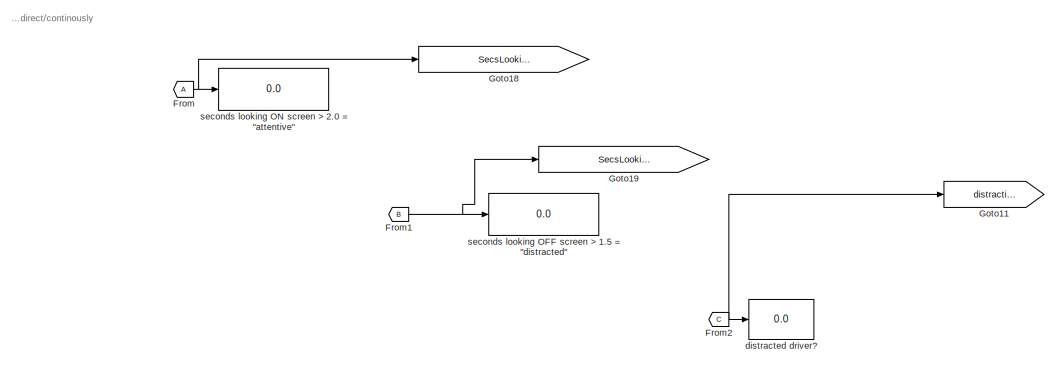
[diagram: root canvas - part 1/3, top right region]
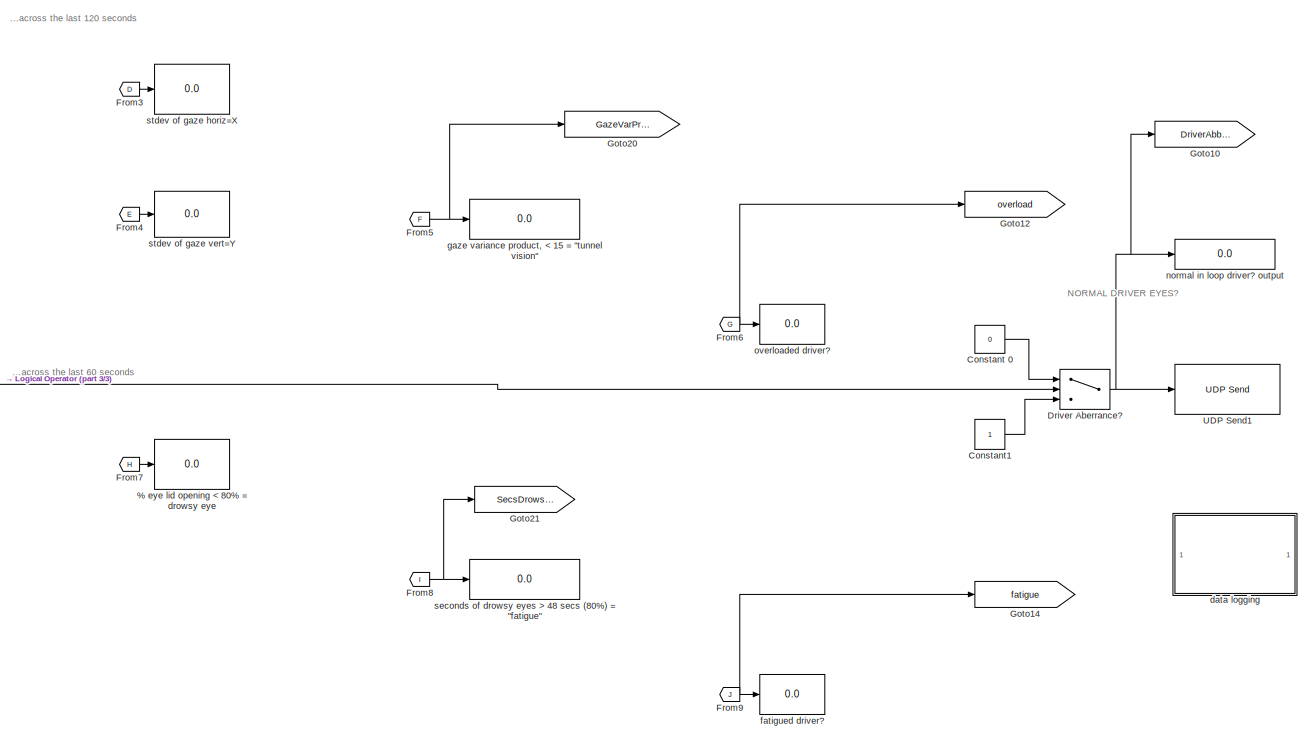
[diagram: root canvas - part 2/3, middle right region]
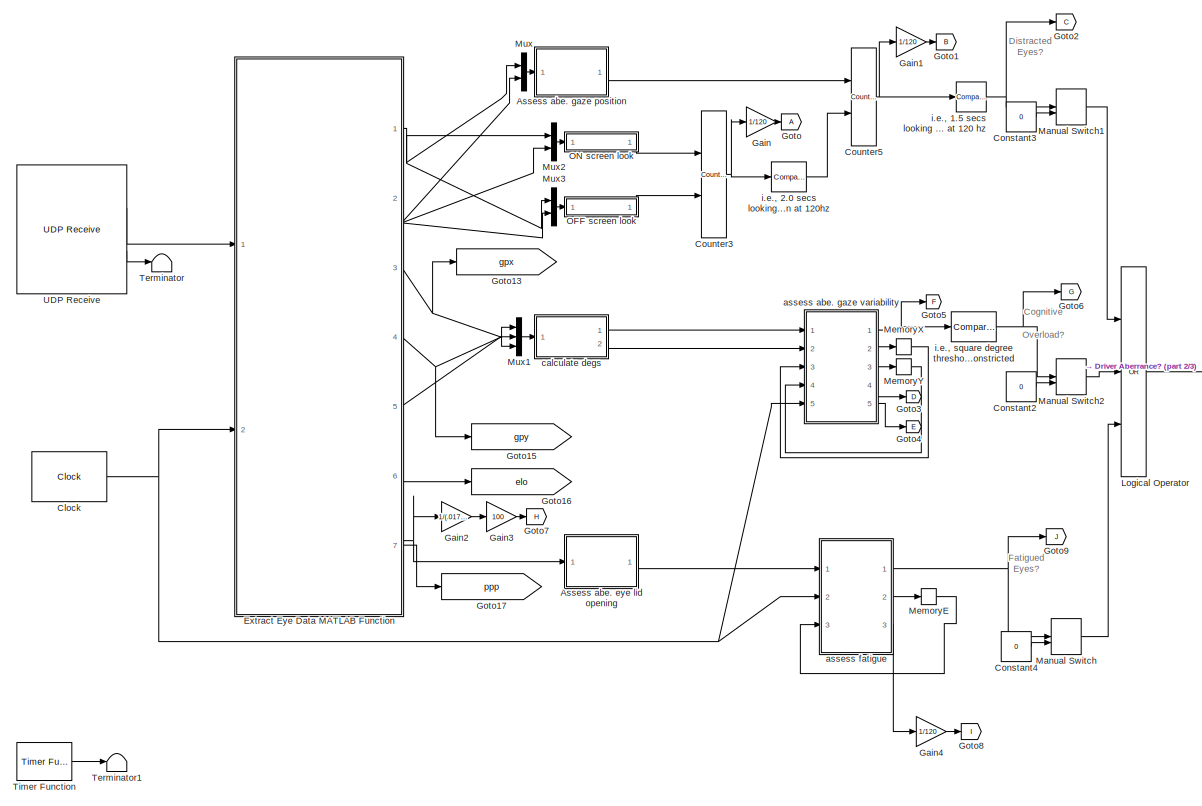
[diagram: root canvas - part 3/3, middle left region]
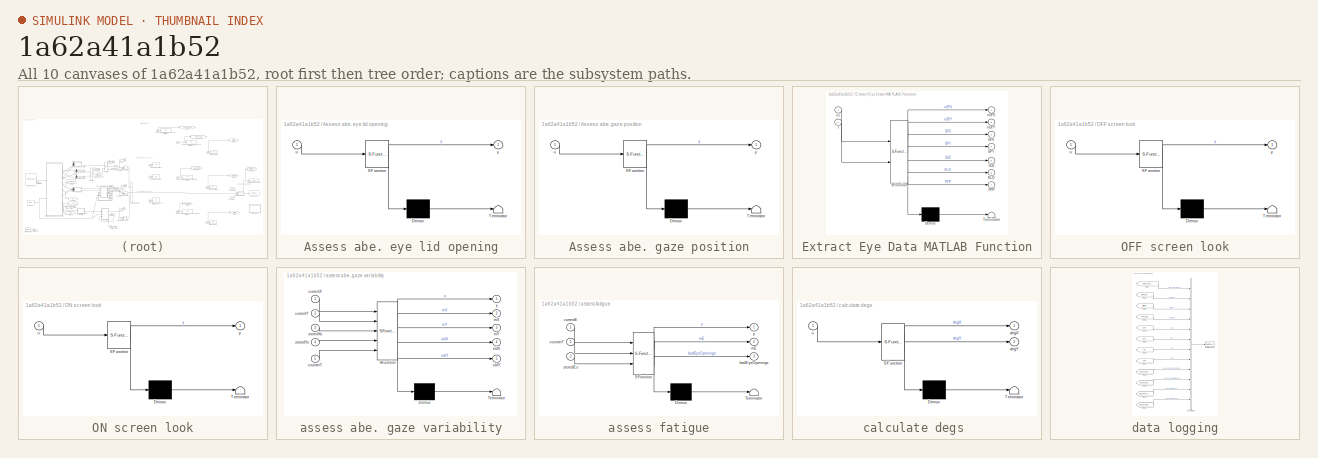
[diagram: thumbnail index - all 10 canvases of the model, root first then tree order]
MODEL slx_1a62a41a1b52
KIND model
CONFIG StopFcn = format shortg\nc = clock;\nlog_filename = ['log_ETT_',num2str(c(1)),'_',num2str(c(2)),'_',num2str(c(3)),'_',num2str(c(4)),'_',num2str(c(5)),'_',num2str(round(c(6)))];\nsave(log_filename,'eyeres')
BLOCK [Display]  gaze variance product, < 15 = "tunnel vision"
  Decimation = 1
  Ports = [1]
BLOCK [Display]  seconds of drowsy eyes > 48 secs (80%) = "fatigue"
  Decimation = 1
  Ports = [1]
BLOCK [Display] % eye lid opening < 80% = drowsy eye 
  Decimation = 1
  Ports = [1]
BLOCK [SubSystem] Assess abe. eye lid opening
  ErrorFcn = Stateflow.Translate.translate
  PermitHierarchicalResolution = ExplicitOnly
  Ports = [1, 1]
  RequestExecContextInheritance = off
  SFBlockType = MATLAB Function
  TreatAsAtomicUnit = on
BLOCK [Demux] Assess abe. eye lid opening/ Demux 
  Outputs = 1
  Ports = [1, 1]
BLOCK [S-Function] Assess abe. eye lid opening/ SFunction 
  EnableBusSupport = on
  FunctionName = sf_sfun
  PortCounts = [1 2]
  Ports = [1, 2]
  Tag = Stateflow S-Function AberrantEyes6 3
BLOCK [Terminator] Assess abe. eye lid opening/ Terminator 
BLOCK [Inport] Assess abe. eye lid opening/u
  IconDisplay = Port number
BLOCK [Outport] Assess abe. eye lid opening/y
  IconDisplay = Port number
BLOCK [SubSystem] Assess abe. gaze position
  ErrorFcn = Stateflow.Translate.translate
  PermitHierarchicalResolution = ExplicitOnly
  Ports = [1, 1]
  RequestExecContextInheritance = off
  SFBlockType = MATLAB Function
  TreatAsAtomicUnit = on
BLOCK [Demux] Assess abe. gaze position/ Demux 
  Outputs = 1
  Ports = [1, 1]
BLOCK [S-Function] Assess abe. gaze position/ SFunction 
  EnableBusSupport = on
  FunctionName = sf_sfun
  PortCounts = [1 2]
  Ports = [1, 2]
  Tag = Stateflow S-Function AberrantEyes6 2
BLOCK [Terminator] Assess abe. gaze position/ Terminator 
BLOCK [Inport] Assess abe. gaze position/u
  IconDisplay = Port number
BLOCK [Outport] Assess abe. gaze position/y
  IconDisplay = Port number
BLOCK [Clock] Clock
  DisplayTime = on
BLOCK [Constant] Constant 0
  Value = 0
BLOCK [Constant] Constant1
BLOCK [Constant] Constant2
  Value = 0
BLOCK [Constant] Constant3
  Value = 0
BLOCK [Constant] Constant4
  Value = 0
BLOCK [Reference] Counter3  REF=dspswit3/Counter
  CntDtype = uint16
  CountEvent = Non-zero sample
  CounterSize = 16 bits
  Direction = Up
  HitDtype = Logical
  HitValue = 32
  InitialCount = 0
  MaxCount = 3600
  Output = Count
  Ports = [2, 1]
  ResetInput = on
  SamplesPerFrame = 1
  SourceBlock = dspswit3/Counter
  SourceType = Counter
  Ts = 1
BLOCK [Reference] Counter5  REF=dspswit3/Counter
  CntDtype = uint16
  CountEvent = Non-zero sample
  CounterSize = 16 bits
  Direction = Up
  HitDtype = Logical
  HitValue = 32
  InitialCount = 0
  MaxCount = 3600
  Output = Count
  Ports = [2, 1]
  ResetInput = on
  SamplesPerFrame = 1
  SourceBlock = dspswit3/Counter
  SourceType = Counter
  Ts = 1
BLOCK [Switch] Driver Aberrance? 
  Criteria = u2 > Threshold
  InputSameDT = off
  SaturateOnIntegerOverflow = off
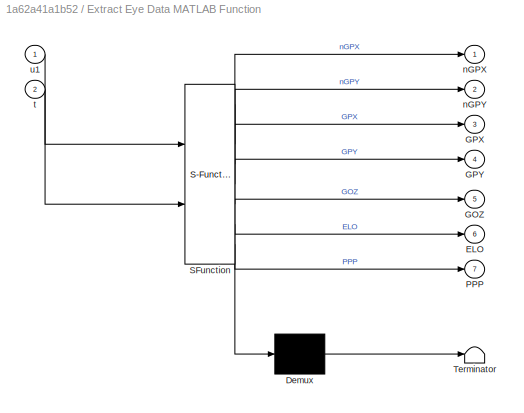
BLOCK [SubSystem] Extract Eye Data MATLAB Function
  ErrorFcn = Stateflow.Translate.translate
  PermitHierarchicalResolution = ExplicitOnly
  Ports = [2, 7]
  RequestExecContextInheritance = off
  SFBlockType = MATLAB Function
  TreatAsAtomicUnit = on
BLOCK [Demux] Extract Eye Data MATLAB Function/ Demux 
  Outputs = 1
  Ports = [1, 1]
BLOCK [S-Function] Extract Eye Data MATLAB Function/ SFunction 
  EnableBusSupport = on
  FunctionName = sf_sfun
  PortCounts = [2 8]
  Ports = [2, 8]
  Tag = Stateflow S-Function AberrantEyes6 1
BLOCK [Terminator] Extract Eye Data MATLAB Function/ Terminator 
BLOCK [Outport] Extract Eye Data MATLAB Function/ELO
  IconDisplay = Port number
  Port = 6
BLOCK [Outport] Extract Eye Data MATLAB Function/GOZ
  IconDisplay = Port number
  Port = 5
BLOCK [Outport] Extract Eye Data MATLAB Function/GPX
  IconDisplay = Port number
  Port = 3
BLOCK [Outport] Extract Eye Data MATLAB Function/GPY
  IconDisplay = Port number
  Port = 4
BLOCK [Outport] Extract Eye Data MATLAB Function/PPP
  IconDisplay = Port number
  Port = 7
BLOCK [Outport] Extract Eye Data MATLAB Function/nGPX
  IconDisplay = Port number
BLOCK [Outport] Extract Eye Data MATLAB Function/nGPY
  IconDisplay = Port number
  Port = 2
BLOCK [Inport] Extract Eye Data MATLAB Function/t
  IconDisplay = Port number
  Port = 2
BLOCK [Inport] Extract Eye Data MATLAB Function/u1
  IconDisplay = Port number
BLOCK [From] From
BLOCK [From] From1
  GotoTag = B
BLOCK [From] From2
  GotoTag = C
BLOCK [From] From3
  GotoTag = D
BLOCK [From] From4
  GotoTag = E
BLOCK [From] From5
  GotoTag = F
BLOCK [From] From6
  GotoTag = G
BLOCK [From] From7
  GotoTag = H
BLOCK [From] From8
  GotoTag = I
BLOCK [From] From9
  GotoTag = J
BLOCK [Gain] Gain
  Gain = 1/120
  OutDataTypeStr = Inherit: Inherit via internal rule
  ParamDataTypeStr = Inherit: Inherit via internal rule
  SaturateOnIntegerOverflow = off
BLOCK [Gain] Gain1
  Gain = 1/120
  OutDataTypeStr = Inherit: Inherit via internal rule
  ParamDataTypeStr = Inherit: Inherit via internal rule
  SaturateOnIntegerOverflow = off
BLOCK [Gain] Gain2
  Gain = 1/(.017-.004)
  OutDataTypeStr = Inherit: Inherit via internal rule
  ParamDataTypeStr = Inherit: Inherit via internal rule
  SaturateOnIntegerOverflow = off
BLOCK [Gain] Gain3
  Gain = 100
  OutDataTypeStr = Inherit: Inherit via internal rule
  ParamDataTypeStr = Inherit: Inherit via internal rule
  SaturateOnIntegerOverflow = off
BLOCK [Gain] Gain4
  Gain = 1/120
  OutDataTypeStr = Inherit: Inherit via internal rule
  ParamDataTypeStr = Inherit: Inherit via internal rule
  SaturateOnIntegerOverflow = off
BLOCK [Goto] Goto
BLOCK [Goto] Goto1
  GotoTag = B
BLOCK [Goto] Goto10
  GotoTag = DriverAbberance
  TagVisibility = global
BLOCK [Goto] Goto11
  GotoTag = distraction
  TagVisibility = global
BLOCK [Goto] Goto12
  GotoTag = overload
  TagVisibility = global
BLOCK [Goto] Goto13
  GotoTag = gpx
  TagVisibility = global
BLOCK [Goto] Goto14
  GotoTag = fatigue
  TagVisibility = global
BLOCK [Goto] Goto15
  GotoTag = gpy
  TagVisibility = global
BLOCK [Goto] Goto16
  GotoTag = elo
  TagVisibility = global
BLOCK [Goto] Goto17
  GotoTag = ppp
  TagVisibility = global
BLOCK [Goto] Goto18
  GotoTag = SecsLookingOnScreen
  TagVisibility = global
BLOCK [Goto] Goto19
  GotoTag = SecsLookingOffScreen
  TagVisibility = global
BLOCK [Goto] Goto2
  GotoTag = C
BLOCK [Goto] Goto20
  GotoTag = GazeVarProduct
  TagVisibility = global
BLOCK [Goto] Goto21
  GotoTag = SecsDrowsyEyes
  TagVisibility = global
BLOCK [Goto] Goto3
  GotoTag = D
BLOCK [Goto] Goto4
  GotoTag = E
BLOCK [Goto] Goto5
  GotoTag = F
BLOCK [Goto] Goto6
  GotoTag = G
BLOCK [Goto] Goto7
  GotoTag = H
BLOCK [Goto] Goto8
  GotoTag = I
BLOCK [Goto] Goto9
  GotoTag = J
BLOCK [Logic] Logical Operator
  AllPortsSameDT = off
  Inputs = 3
  Operator = OR
  OutDataTypeStr = boolean
  Ports = [3, 1]
BLOCK [ManualSwitch] Manual Switch
BLOCK [ManualSwitch] Manual Switch1
BLOCK [ManualSwitch] Manual Switch2
BLOCK [Memory] MemoryE
  X0 = zeros(1,7200)
BLOCK [Memory] MemoryX
  X0 = zeros(1,14400)
BLOCK [Memory] MemoryY
  X0 = zeros(1,14400)
BLOCK [Mux] Mux
  DisplayOption = bar
  Inputs = 2
  Ports = [2, 1]
BLOCK [Mux] Mux1
  DisplayOption = bar
  Inputs = 3
  Ports = [3, 1]
BLOCK [Mux] Mux2
  DisplayOption = bar
  Inputs = 2
  Ports = [2, 1]
BLOCK [Mux] Mux3
  DisplayOption = bar
  Inputs = 2
  Ports = [2, 1]
BLOCK [SubSystem] OFF screen look
  ErrorFcn = Stateflow.Translate.translate
  PermitHierarchicalResolution = ExplicitOnly
  Ports = [1, 1]
  RequestExecContextInheritance = off
  SFBlockType = MATLAB Function
  TreatAsAtomicUnit = on
BLOCK [Demux] OFF screen look/ Demux 
  Outputs = 1
  Ports = [1, 1]
BLOCK [S-Function] OFF screen look/ SFunction 
  EnableBusSupport = on
  FunctionName = sf_sfun
  PortCounts = [1 2]
  Ports = [1, 2]
  Tag = Stateflow S-Function AberrantEyes6 6
BLOCK [Terminator] OFF screen look/ Terminator 
BLOCK [Inport] OFF screen look/u
  IconDisplay = Port number
BLOCK [Outport] OFF screen look/y
  IconDisplay = Port number
BLOCK [SubSystem] ON screen look
  ErrorFcn = Stateflow.Translate.translate
  PermitHierarchicalResolution = ExplicitOnly
  Ports = [1, 1]
  RequestExecContextInheritance = off
  SFBlockType = MATLAB Function
  TreatAsAtomicUnit = on
BLOCK [Demux] ON screen look/ Demux 
  Outputs = 1
  Ports = [1, 1]
BLOCK [S-Function] ON screen look/ SFunction 
  EnableBusSupport = on
  FunctionName = sf_sfun
  PortCounts = [1 2]
  Ports = [1, 2]
  Tag = Stateflow S-Function AberrantEyes6 7
BLOCK [Terminator] ON screen look/ Terminator 
BLOCK [Inport] ON screen look/u
  IconDisplay = Port number
BLOCK [Outport] ON screen look/y
  IconDisplay = Port number
BLOCK [Terminator] Terminator
  Commented = on
BLOCK [Terminator] Terminator1
BLOCK [Reference] Timer Function  REF=RT/Timer Function
  Ports = [0, 1]
  SourceBlock = RT/Timer Function
  SourceType = RTBlock
  ThPriority = TIME CRITICAL
  priority = HIGH
  step = 16.666666
BLOCK [Reference] UDP Receive  REF=dspnetwork/UDP Receive
  Ports = [0, 2]
  SourceBlock = dspnetwork/UDP Receive
  SourceType = UDP Receive
  blockingTime = 0
  dims = 100
  isVarSize = off
  localPort = 139
  localURL = '0.0.0.0'
  recvBufferSize = 100
  remotePort = -1
  remoteURL = '192.168.101.1'
  sampletime = 1/60
  showBlockingTime = off
  signalDatatype = uint8
BLOCK [Reference] UDP Send1  REF=dspnetwork/UDP Send
  Ports = [1]
  SourceBlock = dspnetwork/UDP Send
  SourceType = UDP Send
  localPort = -1
  localPortSource = Automatically determine
  localURL = '0.0.0.0'
  remotePort = 25000
  remoteURL = '169.254.71.50'
  sampletime = -1
  separateLengthPort = 0
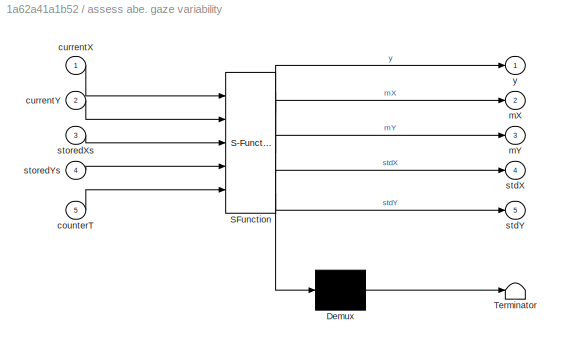
BLOCK [SubSystem] assess abe. gaze variability
  ErrorFcn = Stateflow.Translate.translate
  PermitHierarchicalResolution = ExplicitOnly
  Ports = [5, 5]
  RequestExecContextInheritance = off
  SFBlockType = MATLAB Function
  TreatAsAtomicUnit = on
BLOCK [Demux] assess abe. gaze variability/ Demux 
  Outputs = 1
  Ports = [1, 1]
BLOCK [S-Function] assess abe. gaze variability/ SFunction 
  EnableBusSupport = on
  FunctionName = sf_sfun
  PortCounts = [5 6]
  Ports = [5, 6]
  Tag = Stateflow S-Function AberrantEyes6 11
BLOCK [Terminator] assess abe. gaze variability/ Terminator 
BLOCK [Inport] assess abe. gaze variability/counterT
  IconDisplay = Port number
  Port = 5
BLOCK [Inport] assess abe. gaze variability/currentX
  IconDisplay = Port number
BLOCK [Inport] assess abe. gaze variability/currentY
  IconDisplay = Port number
  Port = 2
BLOCK [Outport] assess abe. gaze variability/mX
  IconDisplay = Port number
  Port = 2
BLOCK [Outport] assess abe. gaze variability/mY
  IconDisplay = Port number
  Port = 3
BLOCK [Outport] assess abe. gaze variability/stdX
  IconDisplay = Port number
  Port = 4
BLOCK [Outport] assess abe. gaze variability/stdY
  IconDisplay = Port number
  Port = 5
BLOCK [Inport] assess abe. gaze variability/storedXs
  IconDisplay = Port number
  Port = 3
BLOCK [Inport] assess abe. gaze variability/storedYs
  IconDisplay = Port number
  Port = 4
BLOCK [Outport] assess abe. gaze variability/y
  IconDisplay = Port number
BLOCK [SubSystem] assess fatigue
  ErrorFcn = Stateflow.Translate.translate
  PermitHierarchicalResolution = ExplicitOnly
  Ports = [3, 3]
  RequestExecContextInheritance = off
  SFBlockType = MATLAB Function
  TreatAsAtomicUnit = on
BLOCK [Demux] assess fatigue/ Demux 
  Outputs = 1
  Ports = [1, 1]
BLOCK [S-Function] assess fatigue/ SFunction 
  EnableBusSupport = on
  FunctionName = sf_sfun
  PortCounts = [3 4]
  Ports = [3, 4]
  Tag = Stateflow S-Function AberrantEyes6 8
BLOCK [Terminator] assess fatigue/ Terminator 
BLOCK [Outport] assess fatigue/badEyeOpenings
  IconDisplay = Port number
  Port = 3
BLOCK [Inport] assess fatigue/counterT
  IconDisplay = Port number
  Port = 2
BLOCK [Inport] assess fatigue/currentE
  IconDisplay = Port number
BLOCK [Outport] assess fatigue/mE
  IconDisplay = Port number
  Port = 2
BLOCK [Inport] assess fatigue/storedEs
  IconDisplay = Port number
  Port = 3
BLOCK [Outport] assess fatigue/y
  IconDisplay = Port number
BLOCK [SubSystem] calculate degs 
  ErrorFcn = Stateflow.Translate.translate
  PermitHierarchicalResolution = ExplicitOnly
  Ports = [1, 2]
  RequestExecContextInheritance = off
  SFBlockType = MATLAB Function
  TreatAsAtomicUnit = on
BLOCK [Demux] calculate degs / Demux 
  Outputs = 1
  Ports = [1, 1]
BLOCK [S-Function] calculate degs / SFunction 
  EnableBusSupport = on
  FunctionName = sf_sfun
  PortCounts = [1 3]
  Ports = [1, 3]
  Tag = Stateflow S-Function AberrantEyes6 4
BLOCK [Terminator] calculate degs / Terminator 
BLOCK [Outport] calculate degs /degX
  IconDisplay = Port number
BLOCK [Outport] calculate degs /degY
  IconDisplay = Port number
  Port = 2
BLOCK [Inport] calculate degs /u
  IconDisplay = Port number
BLOCK [SubSystem] data logging
  Ports = []
  RequestExecContextInheritance = off
BLOCK [BusCreator] data logging/Bus Creator
  DisplayOption = bar
  Inputs = 'driver_abberance','distraction','fatigue','overload','gpx','gpy','elo','ppp','SecsLookingOnScreen','SecsLookingOffScreen','GazeVarProduct','SecsDrowsyEyes'
  Ports = [12, 1]
BLOCK [From] data logging/From
  GotoTag = DriverAbberance
  TagVisibility = global
BLOCK [From] data logging/From1
  GotoTag = distraction
  TagVisibility = global
BLOCK [From] data logging/From10
  GotoTag = GazeVarProduct
  TagVisibility = global
BLOCK [From] data logging/From11
  GotoTag = SecsDrowsyEyes
  TagVisibility = global
BLOCK [From] data logging/From2
  GotoTag = fatigue
  TagVisibility = global
BLOCK [From] data logging/From3
  GotoTag = overload
  TagVisibility = global
BLOCK [From] data logging/From4
  GotoTag = gpx
  TagVisibility = global
BLOCK [From] data logging/From5
  GotoTag = gpy
  TagVisibility = global
BLOCK [From] data logging/From6
  GotoTag = elo
  TagVisibility = global
BLOCK [From] data logging/From7
  GotoTag = ppp
  TagVisibility = global
BLOCK [From] data logging/From8
  GotoTag = SecsLookingOnScreen
  TagVisibility = global
BLOCK [From] data logging/From9
  GotoTag = SecsLookingOffScreen
  TagVisibility = global
BLOCK [ToWorkspace] data logging/To Workspace
  FixptAsFi = on
  MaxDataPoints = inf
  Ports = [1]
  SampleTime = -1
  Save2DSignal = 3-D array (concatenate along third dimension)
  SaveFormat = Timeseries
  VariableName = eyeres
BLOCK [Display] distracted driver?
  Decimation = 1
  Ports = [1]
BLOCK [Display] fatigued driver?
  Decimation = 1
  Ports = [1]
BLOCK [Reference] i.e., 1.5 secs looking off screen at 120 hz  REF=simulink/Logic and Bit
Operations/Compare
To Constant
  OutDataTypeStr = boolean
  Ports = [1, 1]
  SourceBlock = simulink/Logic and Bit\nOperations/Compare\nTo Constant
  SourceType = Compare To Constant
  ZeroCross = on
  const = 180
  relop = >=
BLOCK [Reference] i.e., 2.0 secs looking on screen at 120hz  REF=simulink/Logic and Bit
Operations/Compare
To Constant
  OutDataTypeStr = boolean
  Ports = [1, 1]
  SourceBlock = simulink/Logic and Bit\nOperations/Compare\nTo Constant
  SourceType = Compare To Constant
  ZeroCross = on
  const = 240
  relop = >=
BLOCK [Reference] i.e., square degree threshold for being constricted  REF=simulink/Logic and Bit
Operations/Compare
To Constant
  OutDataTypeStr = boolean
  Ports = [1, 1]
  SourceBlock = simulink/Logic and Bit\nOperations/Compare\nTo Constant
  SourceType = Compare To Constant
  ZeroCross = on
  const = 15
  relop = <=
BLOCK [Display] normal in loop driver? output 
  Decimation = 1
  Ports = [1]
BLOCK [Display] overloaded driver?
  Decimation = 1
  Ports = [1]
BLOCK [Display] seconds looking OFF screen > 1.5 = "distracted"
  Decimation = 1
  Ports = [1]
BLOCK [Display] seconds looking ON screen > 2.0 = "attentive"
  Decimation = 1
  Ports = [1]
BLOCK [Display] stdev of gaze horiz=X
  Decimation = 1
  Ports = [1]
BLOCK [Display] stdev of gaze vert=Y
  Decimation = 1
  Ports = [1]
ANNOTATION (root): Cognitive Overload?
ANNOTATION (root): Distracted Eyes?
ANNOTATION (root): Fatigued Eyes?
ANNOTATION (root): NORMAL DRIVER EYES?
ANNOTATION (root): ...across the last 120 seconds
ANNOTATION (root): ...across the last 60 seconds
ANNOTATION (root): ...direct/continously
LINE Assess abe. eye lid opening:1 -> assess fatigue:1
LINE Assess abe. gaze position:1 -> Counter5:1
NET Clock:1 -> Extract Eye Data MATLAB Function:2, assess abe. gaze variability:5, assess fatigue:2
LINE Constant 0:1 -> Driver Aberrance? :1
LINE Constant1:1 -> Driver Aberrance? :3
LINE Constant2:1 -> Manual Switch2:2
LINE Constant3:1 -> Manual Switch1:2
LINE Constant4:1 -> Manual Switch:2
NET Counter3:1 -> Gain:1, i.e., 2.0 secs looking on screen at 120hz:1
NET Counter5:1 -> Gain1:1, i.e., 1.5 secs looking off screen at 120 hz:1
NET Driver Aberrance? :1 -> Goto10:1, UDP Send1:1, normal in loop driver? output :1
NET Extract Eye Data MATLAB Function:1 -> Mux2:1, Mux3:1, Mux:1
NET Extract Eye Data MATLAB Function:2 -> Mux2:2, Mux3:2, Mux:2
NET Extract Eye Data MATLAB Function:3 -> Goto13:1, Mux1:1
NET Extract Eye Data MATLAB Function:4 -> Goto15:1, Mux1:2
LINE Extract Eye Data MATLAB Function:5 -> Mux1:3
NET Extract Eye Data MATLAB Function:6 -> Assess abe. eye lid opening:1, Gain2:1, Goto16:1
LINE Extract Eye Data MATLAB Function:7 -> Goto17:1
NET From1:1 -> Goto19:1, seconds looking OFF screen > 1.5 = "distracted":1
NET From2:1 -> Goto11:1, distracted driver?:1
LINE From3:1 -> stdev of gaze horiz=X:1
LINE From4:1 -> stdev of gaze vert=Y:1
NET From5:1 ->  gaze variance product, < 15 = "tunnel vision":1, Goto20:1
NET From6:1 -> Goto12:1, overloaded driver?:1
LINE From7:1 -> % eye lid opening < 80% = drowsy eye :1
NET From8:1 ->  seconds of drowsy eyes > 48 secs (80%) = "fatigue":1, Goto21:1
NET From9:1 -> Goto14:1, fatigued driver?:1
NET From:1 -> Goto18:1, seconds looking ON screen > 2.0 = "attentive":1
LINE Gain1:1 -> Goto1:1
LINE Gain2:1 -> Gain3:1
LINE Gain3:1 -> Goto7:1
LINE Gain4:1 -> Goto8:1
LINE Gain:1 -> Goto:1
LINE Logical Operator:1 -> Driver Aberrance? :2
LINE Manual Switch1:1 -> Logical Operator:1
LINE Manual Switch2:1 -> Logical Operator:2
LINE Manual Switch:1 -> Logical Operator:3
LINE MemoryE:1 -> assess fatigue:3
LINE MemoryX:1 -> assess abe. gaze variability:3
LINE MemoryY:1 -> assess abe. gaze variability:4
LINE Mux1:1 -> calculate degs :1
LINE Mux2:1 -> ON screen look:1
LINE Mux3:1 -> OFF screen look:1
LINE Mux:1 -> Assess abe. gaze position:1
LINE OFF screen look:1 -> Counter3:2
LINE ON screen look:1 -> Counter3:1
LINE Timer Function:1 -> Terminator1:1
LINE UDP Receive:1 -> Extract Eye Data MATLAB Function:1
LINE UDP Receive:2 -> Terminator:1
NET assess abe. gaze variability:1 -> Goto5:1, i.e., square degree threshold for being constricted:1
LINE assess abe. gaze variability:2 -> MemoryX:1
LINE assess abe. gaze variability:3 -> MemoryY:1
LINE assess abe. gaze variability:4 -> Goto3:1
LINE assess abe. gaze variability:5 -> Goto4:1
NET assess fatigue:1 -> Goto9:1, Manual Switch:1
LINE assess fatigue:2 -> MemoryE:1
LINE assess fatigue:3 -> Gain4:1
LINE calculate degs :1 -> assess abe. gaze variability:1
LINE calculate degs :2 -> assess abe. gaze variability:2
LINE data logging/Bus Creator:1 -> data logging/To Workspace:1
LINE data logging/From10:1 -> data logging/Bus Creator:11
LINE data logging/From11:1 -> data logging/Bus Creator:12
LINE data logging/From1:1 -> data logging/Bus Creator:2
LINE data logging/From2:1 -> data logging/Bus Creator:3
LINE data logging/From3:1 -> data logging/Bus Creator:4
LINE data logging/From4:1 -> data logging/Bus Creator:5
LINE data logging/From5:1 -> data logging/Bus Creator:6
LINE data logging/From6:1 -> data logging/Bus Creator:7
LINE data logging/From7:1 -> data logging/Bus Creator:8
LINE data logging/From8:1 -> data logging/Bus Creator:9
LINE data logging/From9:1 -> data logging/Bus Creator:10
LINE data logging/From:1 -> data logging/Bus Creator:1
NET i.e., 1.5 secs looking off screen at 120 hz:1 -> Goto2:1, Manual Switch1:1
LINE i.e., 2.0 secs looking on screen at 120hz:1 -> Counter5:2
NET i.e., square degree threshold for being constricted:1 -> Goto6:1, Manual Switch2:1
note: NET lines group one-source signal fan-out (src -> all destinations, sorted); 1:1 wires keep LINE
CHART Extract Eye Data MATLAB Function states=1 transitions=1
  STATE_LABEL 'eML_blk_kernel()'
  STATE_LABEL 'SCRIPT:\nfunction [nGPX,nGPY,GPX,GPY,GOZ,ELO,PPP] = fcn(u1,t)\n%#codegen\nif t == 0\n    u1 = uint8(zeros(100,1));\nend\n\n%initial layer\nX = 0;\nY = 0;\nZ = 0;\nQ = 0;\nOX = 0;\nOY = 0;\nOZ = 0;\nEO = 0;\nPP = 0;\n\n%intermediate layer\nGDX = 0;\nGDY = 0;\nGDZ = 0;\nGOX = 0;\nGOY = 0;\nGOZ = 0;\nGDQ = 0;\nELO = 0;\nPPP = 0;\n\n%second intermediate layer\nGPX = 0;\nGPY = 0;\n\n\n%final layer\nnGPX = 0;\nnGPY = 0;\n\n%access addresses...<+2280ch>'
CHART Assess abe. 
gaze position states=1 transitions=1
  STATE_LABEL 'eML_blk_kernel()'
  STATE_LABEL 'SCRIPT:\nfunction y = fcn(u)\n%#codegen\n\nnGPX = u(1);\nnGPY = u(2);\n\nabeGazeLoc = 0;\n\nif (or(or(nGPX>1,nGPX<-1),or(nGPY>1,nGPY<-1)))||(nGPX==0&&nGPY==0)\n    abeGazeLoc = 1;\nelse\n    abeGazeLoc = 0; \nend\n\ny = abeGazeLoc;\n'
CHART Assess abe.
eye lid opening states=1 transitions=1
  STATE_LABEL 'eML_blk_kernel()'
  STATE_LABEL 'SCRIPT:\nfunction y  = fcn(u)\n%#codegen\n\n%current eyelid opening value\nELO = u(1);\n\n%initial default assessment of current eyelid opening value \nabeELO =  0;\n\n%default measured, a priori min/max values of ELO\nfullOpen = 0.017;\nfullClosed = 0.004;\n\n%trigger if less than threshold... ... ...\n%trigger less often\n%conTrigThresh = fullClosed + (0.20 * (fullOpen - fullClosed));\n%trigger more often\nlibTri...<+1805ch>'
CHART calculate degs
 states=1 transitions=1
  STATE_LABEL 'eML_blk_kernel()'
  STATE_LABEL 'SCRIPT:\nfunction [degX,degY] = fcn(u)\n%#codegen\n\nGPX = u(1);\nGPY = u(2);\nGOZ = u(3);\n\n%calculate degrees in X and Y from 0,0 origin in middle of screen\ndegX = (180/pi)*(atan(GPX/GOZ));\ndegY = (180/pi)*(atan(GPY/GOZ));\n\n'
CHART OFF screen look states=1 transitions=1
  STATE_LABEL 'eML_blk_kernel()'
  STATE_LABEL 'SCRIPT:\nfunction y = fcn(u)\n%#codegen\n\nnGPX = u(1);\nnGPY = u(2);\n\noffScreen = 0;\n\nif nGPX > 1 || nGPX < -1 || nGPY > 1 || nGPY < -1.334\n    offScreen = 1;\nelse\n    offScreen = 0;\nend\n\n\ny = offScreen;\n'
CHART ON screen look states=1 transitions=1
  STATE_LABEL 'eML_blk_kernel()'
  STATE_LABEL 'SCRIPT:\nfunction y = fcn(u)\n%#codegen\n\nnGPX = u(1);\nnGPY = u(2);\n\nonScreen = 0;\n\n%if (or(and(nGPX<=1,nGPX>=-1),and(nGPY<=1,nGPY>=-1)))&&(nGPX~=0)&&(nGPY~=0)\n%    reset = 1;\n%else\n%    reset = 0; \n%end\n\nif nGPX<=1&&nGPX>=-1&&nGPX~=0&&nGPY<=1&&nGPY>=-1&&nGPY~=0\n    onScreen = 1;\nelse\n    onScreen = 0;\nend\n\n%if nGPY<=1&&nGPY>=-1\n%    reset = 1;\n%end\n\n\ny = onScreen;\n'
CHART assess fatigue states=1 transitions=1
  STATE_LABEL 'eML_blk_kernel()'
  STATE_LABEL 'SCRIPT:\nfunction [y,mE,badEyeOpenings] = fcn(currentE,counterT,storedEs)\n%#codegen\n\n%3600 is 60 seconds at 60 per second \n%7200 is 60 seconds at 120 per second \n%also set in MemoryE\n\nnewStoreE = zeros(1,7200);\nmE = zeros(1,7200);\nfatigue = 0;\n\nnewStoreE(1:7199) = storedEs(2:end);\nif isnan(currentE)%block nan values\n    newStoreE(7200) = storedEs(422);%sample from storage pseudo randomly\nelse\n    n...<+278ch>'
CHART assess abe.
gaze variability states=1 transitions=1
  STATE_LABEL 'eML_blk_kernel()'
  STATE_LABEL 'SCRIPT:\nfunction [y,mX,mY,stdX,stdY] = fcn(currentX,currentY,storedXs,storedYs,counterT)\n%#codegen\n\n%600 is ten seconds at 60 per second \n%7200 is 2 minutes at 60 per second\n%14400 is 2 minutes at 120 per second\n%also set in MemoryX and MemoryY obj blocks intial condition field\nsqDegGazeVar = 630.0;%approx max value of covering whole screen\nnewStoreX = zeros(1,14400);\nnewStoreY = zeros(1,14400);\nm...<+785ch>'
